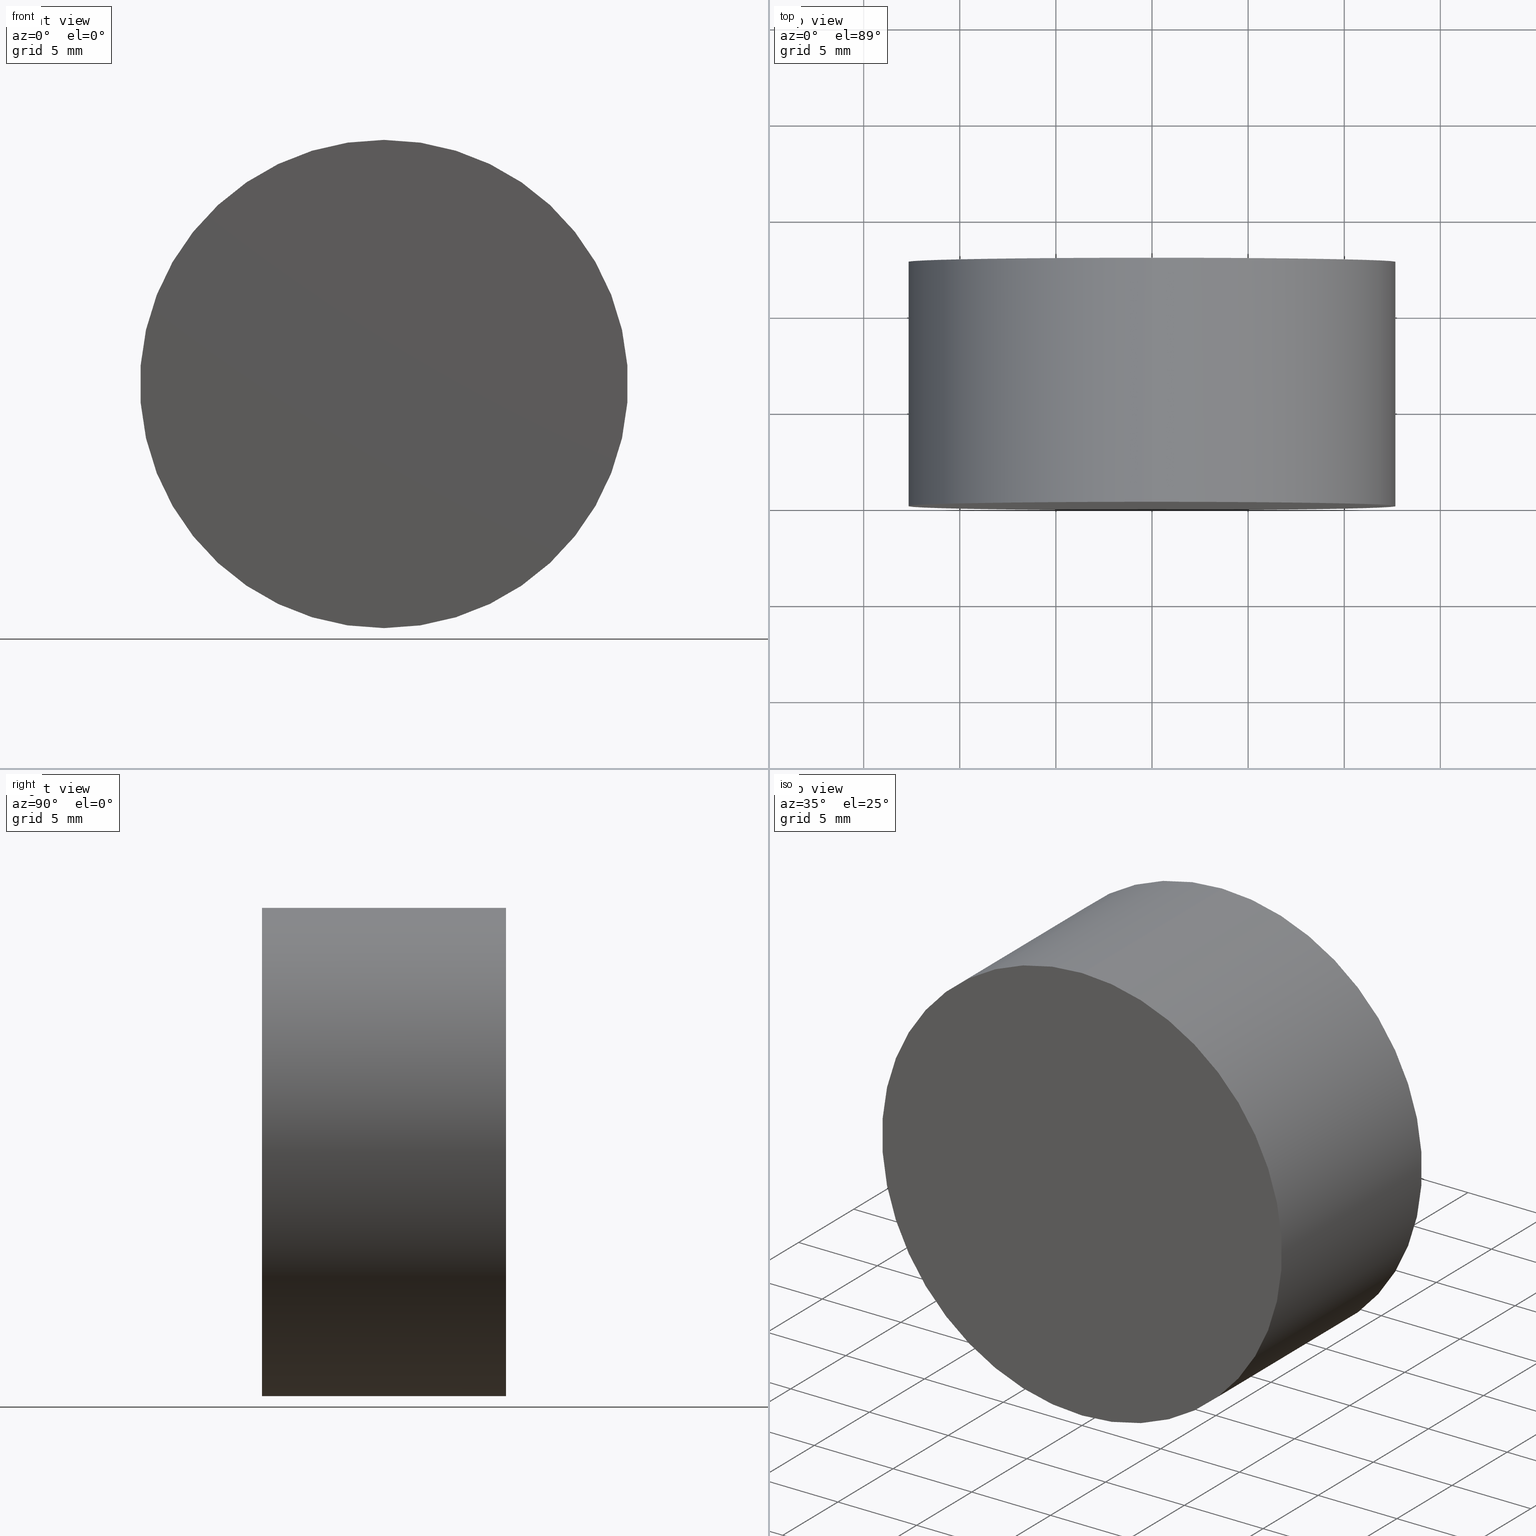
[diagram: canonical four-view strip — front | top / right | iso, engineering-drawing reading convention]
A machine part, canonical four-view strip (front | top / right | iso — engineering-drawing reading convention). The complete STEP part file that produces these views, byte-faithful:
ISO-10303-21;
HEADER;
FILE_DESCRIPTION (( 'STEP AP214' ),
    '1' );
FILE_NAME ('192516.STEP',
    '2019-07-19T07:21:23',
    ( 'user' ),
    ( '΢���й�' ),
    'SwSTEP 2.0',
    'SolidWorks 2016',
    '' );
FILE_SCHEMA (( 'AUTOMOTIVE_DESIGN' ));
ENDSEC;

DATA;
#1 = EDGE_CURVE ( 'NONE', #130, #96, #47, .T. ) ;
#2 = DIRECTION ( 'NONE',  ( 0.0000000000000000000, 0.0000000000000000000, 1.000000000000000000 ) ) ;
#3 = CLOSED_SHELL ( 'NONE', ( #95, #138, #51, #22 ) ) ;
#4 = EDGE_CURVE ( 'NONE', #96, #85, #9, .T. ) ;
#5 = APPLICATION_PROTOCOL_DEFINITION ( 'draft international standard', 'automotive_design', 1998, #90 ) ;
#6 = CIRCLE ( 'NONE', #43, 12.69999999999999900 ) ;
#7 = ORIENTED_EDGE ( 'NONE', *, *, #61, .F. ) ;
#8 = CIRCLE ( 'NONE', #77, 12.69999999999999900 ) ;
#9 = LINE ( 'NONE', #46, #64 ) ;
#10 = AXIS2_PLACEMENT_3D ( 'NONE', #134, #54, #119 ) ;
#11 = CYLINDRICAL_SURFACE ( 'NONE', #65, 12.69999999999999900 ) ;
#12 = CARTESIAN_POINT ( 'NONE',  ( 1.555301434917138400E-015, 0.0000000000000000000, 12.69999999999999900 ) ) ;
#13 =( NAMED_UNIT ( * ) PLANE_ANGLE_UNIT ( ) SI_UNIT ( $, .RADIAN. ) );
#14 = CARTESIAN_POINT ( 'NONE',  ( 0.0000000000000000000, 12.69999999999999900, 0.0000000000000000000 ) ) ;
#15 = ORIENTED_EDGE ( 'NONE', *, *, #122, .F. ) ;
#16 = APPLICATION_PROTOCOL_DEFINITION ( 'draft international standard', 'automotive_design', 1998, #72 ) ;
#17 = SURFACE_SIDE_STYLE ('',( #73 ) ) ;
#18 = DIRECTION ( 'NONE',  ( 0.0000000000000000000, 0.0000000000000000000, 1.000000000000000000 ) ) ;
#19 = EDGE_LOOP ( 'NONE', ( #7, #93, #99, #50 ) ) ;
#20 = MANIFOLD_SOLID_BREP ( '͹̨-����1', #3 ) ;
#21 = VERTEX_POINT ( 'NONE', #56 ) ;
#22 = ADVANCED_FACE ( 'NONE', ( #86 ), #137, .F. ) ;
#23 = DIRECTION ( 'NONE',  ( 0.0000000000000000000, -0.0000000000000000000, 1.000000000000000000 ) ) ;
#24 = CARTESIAN_POINT ( 'NONE',  ( 0.0000000000000000000, 12.69999999999999900, 0.0000000000000000000 ) ) ;
#25 = FILL_AREA_STYLE_COLOUR ( '', #120 ) ;
#26 = CARTESIAN_POINT ( 'NONE',  ( 0.0000000000000000000, 0.0000000000000000000, 0.0000000000000000000 ) ) ;
#27 = FILL_AREA_STYLE_COLOUR ( '', #36 ) ;
#28 = PRODUCT_DEFINITION_CONTEXT ( 'detailed design', #72, 'design' ) ;
#29 = PRODUCT ( '192516', '192516', '', ( #37 ) ) ;
#30 = UNCERTAINTY_MEASURE_WITH_UNIT (LENGTH_MEASURE( 1.000000000000000100E-005 ), #74, 'distance_accuracy_value', 'NONE');
#31 = FACE_OUTER_BOUND ( 'NONE', #76, .T. ) ;
#32 = DIRECTION ( 'NONE',  ( 0.0000000000000000000, 0.0000000000000000000, -1.000000000000000000 ) ) ;
#33 = CARTESIAN_POINT ( 'NONE',  ( 1.555301434917138400E-015, 12.69999999999999900, 12.69999999999999900 ) ) ;
#34 = ORIENTED_EDGE ( 'NONE', *, *, #63, .F. ) ;
#35 = AXIS2_PLACEMENT_3D ( 'NONE', #68, #40, #23 ) ;
#36 = COLOUR_RGB ( '',1.000000000000000000, 1.000000000000000000, 1.000000000000000000 ) ;
#37 = PRODUCT_CONTEXT ( 'NONE', #90, 'mechanical' ) ;
#38 = LINE ( 'NONE', #110, #66 ) ;
#39 =( NAMED_UNIT ( * ) SI_UNIT ( $, .STERADIAN. ) SOLID_ANGLE_UNIT ( ) );
#40 = DIRECTION ( 'NONE',  ( 0.0000000000000000000, 1.000000000000000000, 0.0000000000000000000 ) ) ;
#41 = SURFACE_STYLE_FILL_AREA ( #127 ) ;
#42 = ORIENTED_EDGE ( 'NONE', *, *, #1, .F. ) ;
#43 = AXIS2_PLACEMENT_3D ( 'NONE', #100, #112, #2 ) ;
#44 = DIRECTION ( 'NONE',  ( 0.0000000000000000000, 0.0000000000000000000, 1.000000000000000000 ) ) ;
#45 = PLANE ( 'NONE',  #35 ) ;
#46 = CARTESIAN_POINT ( 'NONE',  ( 1.555301434917138400E-015, 12.69999999999999900, 12.69999999999999900 ) ) ;
#47 = CIRCLE ( 'NONE', #103, 12.69999999999999900 ) ;
#48 = DIRECTION ( 'NONE',  ( 0.0000000000000000000, 0.0000000000000000000, 1.000000000000000000 ) ) ;
#49 =( LENGTH_UNIT ( ) NAMED_UNIT ( * ) SI_UNIT ( .MILLI., .METRE. ) );
#50 = ORIENTED_EDGE ( 'NONE', *, *, #94, .F. ) ;
#51 = ADVANCED_FACE ( 'NONE', ( #31 ), #45, .T. ) ;
#52 =( GEOMETRIC_REPRESENTATION_CONTEXT ( 3 ) GLOBAL_UNCERTAINTY_ASSIGNED_CONTEXT ( ( #87 ) ) GLOBAL_UNIT_ASSIGNED_CONTEXT ( ( #49, #125, #39 ) ) REPRESENTATION_CONTEXT ( 'NONE', 'WORKASPACE' ) );
#53 = CARTESIAN_POINT ( 'NONE',  ( 0.0000000000000000000, 12.69999999999999900, 0.0000000000000000000 ) ) ;
#54 = DIRECTION ( 'NONE',  ( 0.0000000000000000000, 1.000000000000000000, 0.0000000000000000000 ) ) ;
#55 = CARTESIAN_POINT ( 'NONE',  ( 0.0000000000000000000, 0.0000000000000000000, 0.0000000000000000000 ) ) ;
#56 = CARTESIAN_POINT ( 'NONE',  ( 0.0000000000000000000, 0.0000000000000000000, -12.69999999999999900 ) ) ;
#57 = AXIS2_PLACEMENT_3D ( 'NONE', #26, #84, #18 ) ;
#58 =( NAMED_UNIT ( * ) SI_UNIT ( $, .STERADIAN. ) SOLID_ANGLE_UNIT ( ) );
#59 = ADVANCED_BREP_SHAPE_REPRESENTATION ( '192516', ( #20, #133 ), #52 ) ;
#60 = EDGE_LOOP ( 'NONE', ( #126, #42, #62, #106 ) ) ;
#61 = EDGE_CURVE ( 'NONE', #96, #130, #8, .T. ) ;
#62 = ORIENTED_EDGE ( 'NONE', *, *, #94, .T. ) ;
#63 = EDGE_CURVE ( 'NONE', #21, #85, #6, .T. ) ;
#64 = VECTOR ( 'NONE', #75, 1000.000000000000000 ) ;
#65 = AXIS2_PLACEMENT_3D ( 'NONE', #24, #67, #32 ) ;
#66 = VECTOR ( 'NONE', #101, 1000.000000000000000 ) ;
#67 = DIRECTION ( 'NONE',  ( -0.0000000000000000000, -1.000000000000000000, -0.0000000000000000000 ) ) ;
#68 = CARTESIAN_POINT ( 'NONE',  ( 0.0000000000000000000, 12.69999999999999900, 0.0000000000000000000 ) ) ;
#69 = PRESENTATION_STYLE_ASSIGNMENT (( #136 ) ) ;
#70 = CARTESIAN_POINT ( 'NONE',  ( 0.0000000000000000000, 12.69999999999999900, -12.69999999999999900 ) ) ;
#71 = EDGE_LOOP ( 'NONE', ( #34, #15 ) ) ;
#72 = APPLICATION_CONTEXT ( 'automotive_design' ) ;
#73 = SURFACE_STYLE_FILL_AREA ( #83 ) ;
#74 =( LENGTH_UNIT ( ) NAMED_UNIT ( * ) SI_UNIT ( .MILLI., .METRE. ) );
#75 = DIRECTION ( 'NONE',  ( -0.0000000000000000000, -1.000000000000000000, -0.0000000000000000000 ) ) ;
#76 = EDGE_LOOP ( 'NONE', ( #121, #114 ) ) ;
#77 = AXIS2_PLACEMENT_3D ( 'NONE', #53, #117, #44 ) ;
#78 = STYLED_ITEM ( 'NONE', ( #69 ), #59 ) ;
#79 = SURFACE_STYLE_USAGE ( .BOTH. , #135 ) ;
#80 =( NAMED_UNIT ( * ) SI_UNIT ( $, .STERADIAN. ) SOLID_ANGLE_UNIT ( ) );
#81 = CARTESIAN_POINT ( 'NONE',  ( 0.0000000000000000000, 12.69999999999999900, 0.0000000000000000000 ) ) ;
#82 = AXIS2_PLACEMENT_3D ( 'NONE', #14, #102, #92 ) ;
#83 = FILL_AREA_STYLE ('',( #25 ) ) ;
#84 = DIRECTION ( 'NONE',  ( 0.0000000000000000000, 1.000000000000000000, 0.0000000000000000000 ) ) ;
#85 = VERTEX_POINT ( 'NONE', #12 ) ;
#86 = FACE_OUTER_BOUND ( 'NONE', #71, .T. ) ;
#87 = UNCERTAINTY_MEASURE_WITH_UNIT (LENGTH_MEASURE( 1.000000000000000100E-005 ), #49, 'distance_accuracy_value', 'NONE');
#88 =( LENGTH_UNIT ( ) NAMED_UNIT ( * ) SI_UNIT ( .MILLI., .METRE. ) );
#89 = PRODUCT_DEFINITION_SHAPE ( 'NONE', 'NONE',  #140 ) ;
#90 = APPLICATION_CONTEXT ( 'automotive_design' ) ;
#91 = SHAPE_DEFINITION_REPRESENTATION ( #89, #59 ) ;
#92 = DIRECTION ( 'NONE',  ( 0.0000000000000000000, 0.0000000000000000000, -1.000000000000000000 ) ) ;
#93 = ORIENTED_EDGE ( 'NONE', *, *, #4, .T. ) ;
#94 = EDGE_CURVE ( 'NONE', #130, #21, #38, .T. ) ;
#95 = ADVANCED_FACE ( 'NONE', ( #118 ), #11, .T. ) ;
#96 = VERTEX_POINT ( 'NONE', #33 ) ;
#97 = PRESENTATION_LAYER_ASSIGNMENT (  '', '', ( #78 ) ) ;
#98 = CIRCLE ( 'NONE', #57, 12.69999999999999900 ) ;
#99 = ORIENTED_EDGE ( 'NONE', *, *, #122, .T. ) ;
#100 = CARTESIAN_POINT ( 'NONE',  ( 0.0000000000000000000, 0.0000000000000000000, 0.0000000000000000000 ) ) ;
#101 = DIRECTION ( 'NONE',  ( -0.0000000000000000000, -1.000000000000000000, -0.0000000000000000000 ) ) ;
#102 = DIRECTION ( 'NONE',  ( -0.0000000000000000000, -1.000000000000000000, -0.0000000000000000000 ) ) ;
#103 = AXIS2_PLACEMENT_3D ( 'NONE', #81, #128, #113 ) ;
#104 = DIRECTION ( 'NONE',  ( 1.000000000000000000, 0.0000000000000000000, 0.0000000000000000000 ) ) ;
#105 = MECHANICAL_DESIGN_GEOMETRIC_PRESENTATION_REPRESENTATION (  '', ( #78 ), #108 ) ;
#106 = ORIENTED_EDGE ( 'NONE', *, *, #63, .T. ) ;
#107 =( GEOMETRIC_REPRESENTATION_CONTEXT ( 3 ) GLOBAL_UNCERTAINTY_ASSIGNED_CONTEXT ( ( #109 ) ) GLOBAL_UNIT_ASSIGNED_CONTEXT ( ( #88, #13, #80 ) ) REPRESENTATION_CONTEXT ( 'NONE', 'WORKASPACE' ) );
#108 =( GEOMETRIC_REPRESENTATION_CONTEXT ( 3 ) GLOBAL_UNCERTAINTY_ASSIGNED_CONTEXT ( ( #30 ) ) GLOBAL_UNIT_ASSIGNED_CONTEXT ( ( #74, #123, #58 ) ) REPRESENTATION_CONTEXT ( 'NONE', 'WORKASPACE' ) );
#109 = UNCERTAINTY_MEASURE_WITH_UNIT (LENGTH_MEASURE( 1.000000000000000100E-005 ), #88, 'distance_accuracy_value', 'NONE');
#110 = CARTESIAN_POINT ( 'NONE',  ( 0.0000000000000000000, 12.69999999999999900, -12.69999999999999900 ) ) ;
#111 = PRODUCT_DEFINITION_FORMATION_WITH_SPECIFIED_SOURCE ( '�κ�', '', #29, .NOT_KNOWN. ) ;
#112 = DIRECTION ( 'NONE',  ( 0.0000000000000000000, 1.000000000000000000, 0.0000000000000000000 ) ) ;
#113 = DIRECTION ( 'NONE',  ( 0.0000000000000000000, 0.0000000000000000000, 1.000000000000000000 ) ) ;
#114 = ORIENTED_EDGE ( 'NONE', *, *, #61, .T. ) ;
#115 = STYLED_ITEM ( 'NONE', ( #129 ), #20 ) ;
#116 = PRODUCT_RELATED_PRODUCT_CATEGORY ( 'part', '', ( #29 ) ) ;
#117 = DIRECTION ( 'NONE',  ( 0.0000000000000000000, 1.000000000000000000, 0.0000000000000000000 ) ) ;
#118 = FACE_OUTER_BOUND ( 'NONE', #19, .T. ) ;
#119 = DIRECTION ( 'NONE',  ( 0.0000000000000000000, -0.0000000000000000000, 1.000000000000000000 ) ) ;
#120 = COLOUR_RGB ( '',1.000000000000000000, 1.000000000000000000, 1.000000000000000000 ) ;
#121 = ORIENTED_EDGE ( 'NONE', *, *, #1, .T. ) ;
#122 = EDGE_CURVE ( 'NONE', #85, #21, #98, .T. ) ;
#123 =( NAMED_UNIT ( * ) PLANE_ANGLE_UNIT ( ) SI_UNIT ( $, .RADIAN. ) );
#124 = FACE_OUTER_BOUND ( 'NONE', #60, .T. ) ;
#125 =( NAMED_UNIT ( * ) PLANE_ANGLE_UNIT ( ) SI_UNIT ( $, .RADIAN. ) );
#126 = ORIENTED_EDGE ( 'NONE', *, *, #4, .F. ) ;
#127 = FILL_AREA_STYLE ('',( #27 ) ) ;
#128 = DIRECTION ( 'NONE',  ( 0.0000000000000000000, 1.000000000000000000, 0.0000000000000000000 ) ) ;
#129 = PRESENTATION_STYLE_ASSIGNMENT (( #79 ) ) ;
#130 = VERTEX_POINT ( 'NONE', #70 ) ;
#131 = MECHANICAL_DESIGN_GEOMETRIC_PRESENTATION_REPRESENTATION (  '', ( #115 ), #107 ) ;
#132 = CYLINDRICAL_SURFACE ( 'NONE', #82, 12.69999999999999900 ) ;
#133 = AXIS2_PLACEMENT_3D ( 'NONE', #55, #48, #104 ) ;
#134 = CARTESIAN_POINT ( 'NONE',  ( 0.0000000000000000000, 0.0000000000000000000, 0.0000000000000000000 ) ) ;
#135 = SURFACE_SIDE_STYLE ('',( #41 ) ) ;
#136 = SURFACE_STYLE_USAGE ( .BOTH. , #17 ) ;
#137 = PLANE ( 'NONE',  #10 ) ;
#138 = ADVANCED_FACE ( 'NONE', ( #124 ), #132, .T. ) ;
#139 = PRESENTATION_LAYER_ASSIGNMENT (  '', '', ( #115 ) ) ;
#140 = PRODUCT_DEFINITION ( 'δ֪', '', #111, #28 ) ;
ENDSEC;
END-ISO-10303-21;
